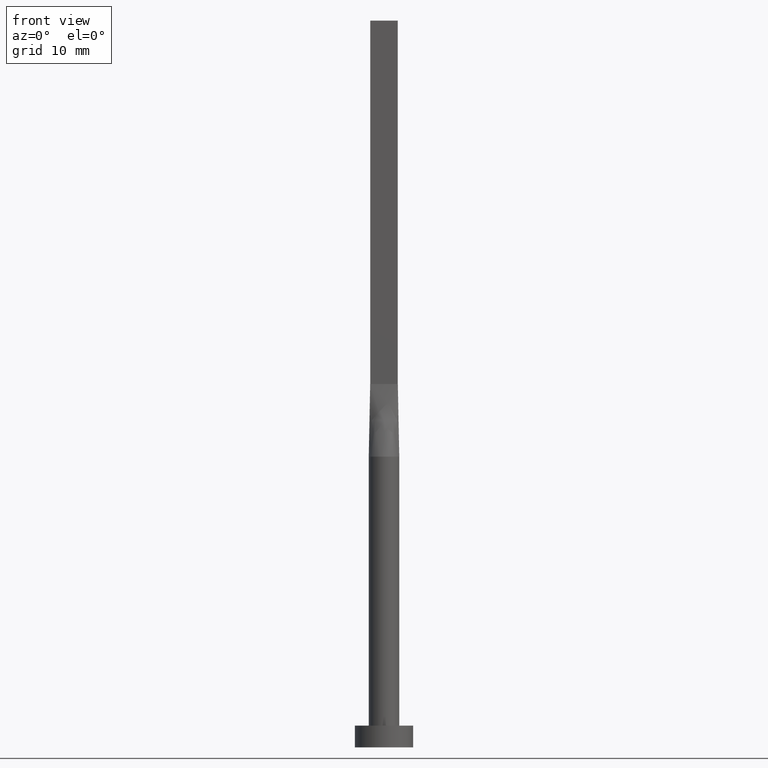
[diagram: clean part render]
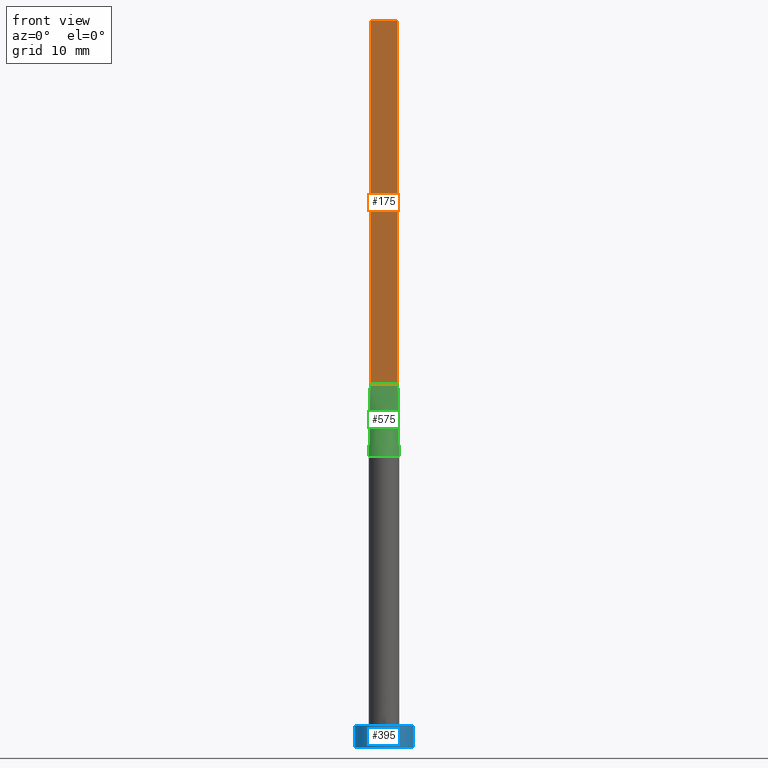
[diagram: same view with three faces highlighted in distinct colors, each labeled with its STEP entity id]
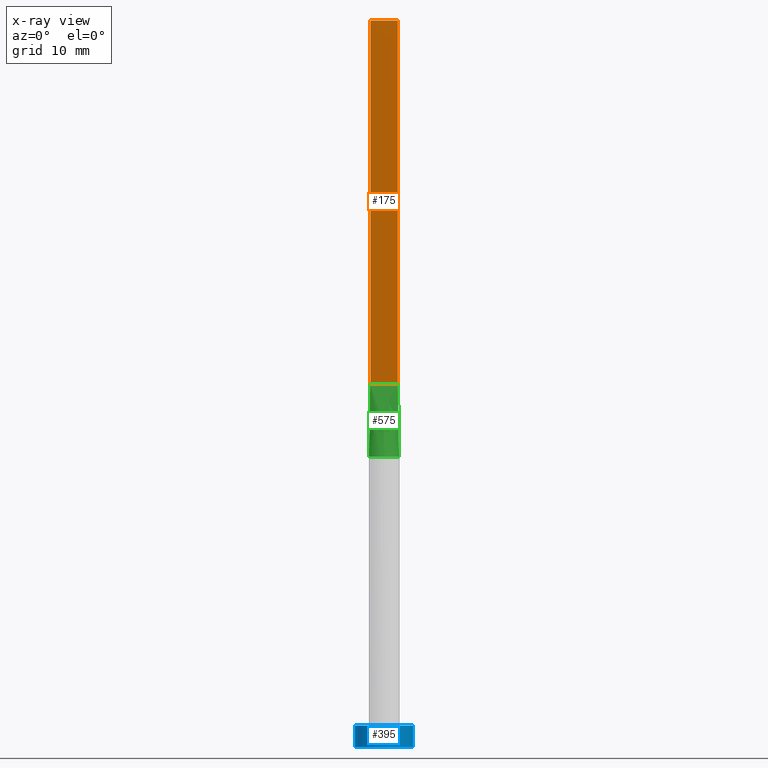
[diagram: x-ray of the same camera — body ghosted, the three highlighted faces saturated]
A machine part, front view with three faces highlighted in distinct colors.
The next image is the same camera in x-ray (body ghosted, the three faces saturated) — at least one of them is partly hidden behind the body in this view.
Their STEP definitions:

[orange] entity #175 — the highlighted planar face has unit normal (0, 1, -0).
#25 = DIRECTION ( 'NONE',  ( 1.000000000000000000, -7.132909029509899409E-17, 0.000000000000000000 ) ) ;
#68 = DIRECTION ( 'NONE',  ( -0.000000000000000000, -0.000000000000000000, -1.000000000000000000 ) ) ;
#81 = VERTEX_POINT ( 'NONE', #241 ) ;
#90 = VERTEX_POINT ( 'NONE', #418 ) ;
#154 = CARTESIAN_POINT ( 'NONE',  ( 1.899999999999999023, -0.2999999999999997669, 100.0000000000000000 ) ) ;
#159 = ORIENTED_EDGE ( 'NONE', *, *, #280, .T. ) ;
#161 = CARTESIAN_POINT ( 'NONE',  ( -1.899999999999999911, -0.2999999999999994893, 50.00000000000000000 ) ) ;
#163 = DIRECTION ( 'NONE',  ( 7.132909029509899409E-17, 1.000000000000000000, -0.000000000000000000 ) ) ;
#175 = ADVANCED_FACE ( 'NONE', ( #386 ), #560, .F. ) ;
#183 = ORIENTED_EDGE ( 'NONE', *, *, #574, .F. ) ;
#200 = EDGE_LOOP ( 'NONE', ( #159, #183, #387, #448 ) ) ;
#203 = LINE ( 'NONE', #470, #468 ) ;
#236 = AXIS2_PLACEMENT_3D ( 'NONE', #524, #163, #349 ) ;
#241 = CARTESIAN_POINT ( 'NONE',  ( -1.899999999999999911, -0.2999999999999994893, 100.0000000000000000 ) ) ;
#250 = VERTEX_POINT ( 'NONE', #161 ) ;
#260 = VERTEX_POINT ( 'NONE', #275 ) ;
#275 = CARTESIAN_POINT ( 'NONE',  ( 1.899999999999999023, -0.2999999999999997669, 50.00000000000000000 ) ) ;
#280 = EDGE_CURVE ( 'NONE', #250, #260, #572, .T. ) ;
#293 = CARTESIAN_POINT ( 'NONE',  ( -1.899999999999999911, -0.2999999999999994893, 100.0000000000000000 ) ) ;
#348 = VECTOR ( 'NONE', #68, 1000.000000000000000 ) ;
#349 = DIRECTION ( 'NONE',  ( -1.000000000000000000, 7.132909029509899409E-17, 0.000000000000000000 ) ) ;
#377 = DIRECTION ( 'NONE',  ( -0.000000000000000000, -0.000000000000000000, -1.000000000000000000 ) ) ;
#386 = FACE_OUTER_BOUND ( 'NONE', #200, .T. ) ;
#387 = ORIENTED_EDGE ( 'NONE', *, *, #535, .F. ) ;
#418 = CARTESIAN_POINT ( 'NONE',  ( 1.899999999999999023, -0.2999999999999997669, 100.0000000000000000 ) ) ;
#448 = ORIENTED_EDGE ( 'NONE', *, *, #559, .T. ) ;
#452 = CARTESIAN_POINT ( 'NONE',  ( -1.899999999999999911, -0.2999999999999994893, 50.00000000000000000 ) ) ;
#468 = VECTOR ( 'NONE', #25, 1000.000000000000000 ) ;
#470 = CARTESIAN_POINT ( 'NONE',  ( -1.899999999999999911, -0.2999999999999994893, 100.0000000000000000 ) ) ;
#489 = VECTOR ( 'NONE', #377, 1000.000000000000000 ) ;
#492 = DIRECTION ( 'NONE',  ( 1.000000000000000000, -7.132909029509898176E-17, 0.000000000000000000 ) ) ;
#524 = CARTESIAN_POINT ( 'NONE',  ( -1.899999999999999911, -0.2999999999999994893, 100.0000000000000000 ) ) ;
#535 = EDGE_CURVE ( 'NONE', #81, #90, #203, .T. ) ;
#553 = LINE ( 'NONE', #154, #348 ) ;
#558 = VECTOR ( 'NONE', #492, 1000.000000000000000 ) ;
#559 = EDGE_CURVE ( 'NONE', #81, #250, #563, .T. ) ;
#560 = PLANE ( 'NONE',  #236 ) ;
#563 = LINE ( 'NONE', #293, #489 ) ;
#572 = LINE ( 'NONE', #452, #558 ) ;
#574 = EDGE_CURVE ( 'NONE', #90, #260, #553, .T. ) ;

[blue] entity #395 — the highlighted cylindrical surface (edge-blend (fillet) strip) has radius 4 mm, axis along (-0, -0, -1).
#17 = CARTESIAN_POINT ( 'NONE',  ( -4.000000000000000000, 0.000000000000000000, 3.000000000000000000 ) ) ;
#33 = ORIENTED_EDGE ( 'NONE', *, *, #107, .T. ) ;
#62 = DIRECTION ( 'NONE',  ( 0.000000000000000000, 0.000000000000000000, 1.000000000000000000 ) ) ;
#63 = CARTESIAN_POINT ( 'NONE',  ( 4.000000000000000000, 4.898587196589412829E-16, 3.000000000000000000 ) ) ;
#88 = DIRECTION ( 'NONE',  ( 0.000000000000000000, 0.000000000000000000, 1.000000000000000000 ) ) ;
#107 = EDGE_CURVE ( 'NONE', #179, #530, #127, .T. ) ;
#127 = CIRCLE ( 'NONE', #546, 4.000000000000000000 ) ;
#132 = AXIS2_PLACEMENT_3D ( 'NONE', #400, #88, #505 ) ;
#136 = ORIENTED_EDGE ( 'NONE', *, *, #316, .F. ) ;
#138 = CYLINDRICAL_SURFACE ( 'NONE', #365, 4.000000000000000000 ) ;
#162 = CARTESIAN_POINT ( 'NONE',  ( -4.000000000000000000, 0.000000000000000000, 3.000000000000000000 ) ) ;
#179 = VERTEX_POINT ( 'NONE', #342 ) ;
#181 = EDGE_LOOP ( 'NONE', ( #343, #136, #364, #33 ) ) ;
#182 = CARTESIAN_POINT ( 'NONE',  ( 0.000000000000000000, 0.000000000000000000, 3.000000000000000000 ) ) ;
#199 = DIRECTION ( 'NONE',  ( -0.000000000000000000, -0.000000000000000000, -1.000000000000000000 ) ) ;
#278 = DIRECTION ( 'NONE',  ( -1.000000000000000000, 0.000000000000000000, 0.000000000000000000 ) ) ;
#286 = CARTESIAN_POINT ( 'NONE',  ( 4.000000000000000000, 4.898587196589412829E-16, 3.000000000000000000 ) ) ;
#301 = CARTESIAN_POINT ( 'NONE',  ( 4.000000000000000000, 4.898587196589412829E-16, 0.000000000000000000 ) ) ;
#316 = EDGE_CURVE ( 'NONE', #493, #455, #385, .T. ) ;
#329 = LINE ( 'NONE', #63, #532 ) ;
#336 = EDGE_CURVE ( 'NONE', #455, #530, #329, .T. ) ;
#342 = CARTESIAN_POINT ( 'NONE',  ( -4.000000000000000000, 0.000000000000000000, 0.000000000000000000 ) ) ;
#343 = ORIENTED_EDGE ( 'NONE', *, *, #336, .F. ) ;
#364 = ORIENTED_EDGE ( 'NONE', *, *, #509, .T. ) ;
#365 = AXIS2_PLACEMENT_3D ( 'NONE', #182, #498, #278 ) ;
#374 = VECTOR ( 'NONE', #550, 1000.000000000000000 ) ;
#385 = CIRCLE ( 'NONE', #132, 4.000000000000000000 ) ;
#395 = ADVANCED_FACE ( 'NONE', ( #502 ), #138, .T. ) ;
#400 = CARTESIAN_POINT ( 'NONE',  ( 0.000000000000000000, 0.000000000000000000, 3.000000000000000000 ) ) ;
#423 = DIRECTION ( 'NONE',  ( 1.000000000000000000, 0.000000000000000000, 0.000000000000000000 ) ) ;
#430 = LINE ( 'NONE', #162, #374 ) ;
#455 = VERTEX_POINT ( 'NONE', #286 ) ;
#466 = CARTESIAN_POINT ( 'NONE',  ( 0.000000000000000000, 0.000000000000000000, 0.000000000000000000 ) ) ;
#493 = VERTEX_POINT ( 'NONE', #17 ) ;
#498 = DIRECTION ( 'NONE',  ( -0.000000000000000000, -0.000000000000000000, -1.000000000000000000 ) ) ;
#502 = FACE_OUTER_BOUND ( 'NONE', #181, .T. ) ;
#505 = DIRECTION ( 'NONE',  ( 1.000000000000000000, 0.000000000000000000, 0.000000000000000000 ) ) ;
#509 = EDGE_CURVE ( 'NONE', #493, #179, #430, .T. ) ;
#530 = VERTEX_POINT ( 'NONE', #301 ) ;
#532 = VECTOR ( 'NONE', #199, 1000.000000000000000 ) ;
#546 = AXIS2_PLACEMENT_3D ( 'NONE', #466, #62, #423 ) ;
#550 = DIRECTION ( 'NONE',  ( -0.000000000000000000, -0.000000000000000000, -1.000000000000000000 ) ) ;

[green] entity #575 — the highlighted face is a freeform B-spline surface patch.
#18 = CARTESIAN_POINT ( 'NONE',  ( 1.266666666666666385, -0.2999999999999997113, 50.00000000000000000 ) ) ;
#19 = DIRECTION ( 'NONE',  ( 1.000000000000000000, 0.000000000000000000, 0.000000000000000000 ) ) ;
#49 = ORIENTED_EDGE ( 'NONE', *, *, #280, .F. ) ;
#59 = B_SPLINE_SURFACE_WITH_KNOTS ( 'NONE', 3, 1, ( 
 ( #202, #471 ),
 ( #78, #382 ),
 ( #125, #253 ),
 ( #570, #429 ),
 ( #164, #263 ),
 ( #295, #391 ),
 ( #114, #344 ),
 ( #555, #156 ),
 ( #435, #261 ),
 ( #67, #213 ),
 ( #394, #249 ),
 ( #347, #70 ),
 ( #426, #308 ),
 ( #476, #519 ),
 ( #483, #18 ),
 ( #128, #440 ),
 ( #522, #339 ),
 ( #216, #473 ) ),
 .UNSPECIFIED., .F., .F., .F.,
 ( 4, 2, 2, 2, 2, 2, 2, 2, 4 ),
 ( 2, 2 ),
 ( 0.000000000000000000, 0.1249999999999999445, 0.2499999999999999445, 0.3749999999999999445, 0.5000000000000000000, 0.6249999999999998890, 0.7499999999999998890, 0.8749999999999997780, 1.000000000000000000 ),
 ( 0.000000000000000000, 1.000000000000000000 ),
 .UNSPECIFIED. ) ;
#61 = CARTESIAN_POINT ( 'NONE',  ( 2.074492141291045755, -0.3275508996892426139, 40.00000000000000000 ) ) ;
#67 = CARTESIAN_POINT ( 'NONE',  ( 0.2990728642939452508, -2.100000000000000533, 40.00000000000000000 ) ) ;
#70 = CARTESIAN_POINT ( 'NONE',  ( 0.6333333333333340809, -0.2999999999999996003, 50.00000000000000000 ) ) ;
#78 = CARTESIAN_POINT ( 'NONE',  ( -2.047342767731585411, -0.4982646475365654637, 39.99999999999999289 ) ) ;
#114 = CARTESIAN_POINT ( 'NONE',  ( -1.119115561862284558, -1.799829988698610439, 40.00000000000000711 ) ) ;
#121 = LINE ( 'NONE', #165, #409 ) ;
#125 = CARTESIAN_POINT ( 'NONE',  ( -1.996565546919327971, -0.6845950695482642123, 40.00000000000000711 ) ) ;
#128 = CARTESIAN_POINT ( 'NONE',  ( 1.996565546919328415, -0.6845950695482654336, 40.00000000000001421 ) ) ;
#156 = CARTESIAN_POINT ( 'NONE',  ( -0.3166666666666652086, -0.2999999999999996003, 50.00000000000000000 ) ) ;
#161 = CARTESIAN_POINT ( 'NONE',  ( -1.899999999999999911, -0.2999999999999994893, 50.00000000000000000 ) ) ;
#164 = CARTESIAN_POINT ( 'NONE',  ( -1.692271541701912296, -1.268928319070361965, 40.00000000000000000 ) ) ;
#165 = CARTESIAN_POINT ( 'NONE',  ( 1.987151113595522212, -0.3137607021466614632, 45.00000000000000000 ) ) ;
#174 = DIRECTION ( 'NONE',  ( -0.01742750958084847077, 0.002751712039081371727, 0.9998443428807622935 ) ) ;
#202 = CARTESIAN_POINT ( 'NONE',  ( -2.074302227191044956, -0.3275214042933223824, 40.00000000000000000 ) ) ;
#213 = CARTESIAN_POINT ( 'NONE',  ( 0.1583333333333347415, -0.2999999999999996003, 50.00000000000000000 ) ) ;
#215 = CARTESIAN_POINT ( 'NONE',  ( 0.000000000000000000, 0.000000000000000000, 40.00000000000000000 ) ) ;
#216 = CARTESIAN_POINT ( 'NONE',  ( 2.074302227191044956, -0.3275214042933231595, 40.00000000000000000 ) ) ;
#228 = EDGE_CURVE ( 'NONE', #315, #566, #276, .T. ) ;
#249 = CARTESIAN_POINT ( 'NONE',  ( 0.3166666666666678176, -0.2999999999999996003, 50.00000000000000000 ) ) ;
#250 = VERTEX_POINT ( 'NONE', #161 ) ;
#253 = CARTESIAN_POINT ( 'NONE',  ( -1.583333333333333037, -0.2999999999999994893, 50.00000000000000000 ) ) ;
#255 = EDGE_CURVE ( 'NONE', #566, #260, #121, .T. ) ;
#260 = VERTEX_POINT ( 'NONE', #275 ) ;
#261 = CARTESIAN_POINT ( 'NONE',  ( -0.1583333333333317716, -0.2999999999999996003, 50.00000000000000711 ) ) ;
#263 = CARTESIAN_POINT ( 'NONE',  ( -1.108333333333332504, -0.2999999999999994893, 50.00000000000000000 ) ) ;
#270 = CARTESIAN_POINT ( 'NONE',  ( -2.074486960997361962, -0.3275502116714910095, 40.00000000000000000 ) ) ;
#271 = ORIENTED_EDGE ( 'NONE', *, *, #255, .T. ) ;
#275 = CARTESIAN_POINT ( 'NONE',  ( 1.899999999999999023, -0.2999999999999997669, 50.00000000000000000 ) ) ;
#276 = CIRCLE ( 'NONE', #337, 2.100000000000000089 ) ;
#280 = EDGE_CURVE ( 'NONE', #250, #260, #572, .T. ) ;
#295 = CARTESIAN_POINT ( 'NONE',  ( -1.342614810400548864, -1.634425746458369355, 40.00000000000000711 ) ) ;
#308 = CARTESIAN_POINT ( 'NONE',  ( 0.7916666666666672958, -0.2999999999999996003, 50.00000000000000000 ) ) ;
#315 = VERTEX_POINT ( 'NONE', #270 ) ;
#324 = VECTOR ( 'NONE', #500, 1000.000000000000114 ) ;
#337 = AXIS2_PLACEMENT_3D ( 'NONE', #215, #392, #19 ) ;
#339 = CARTESIAN_POINT ( 'NONE',  ( 1.741666666666665586, -0.2999999999999997113, 50.00000000000000000 ) ) ;
#344 = CARTESIAN_POINT ( 'NONE',  ( -0.6333333333333320825, -0.2999999999999996003, 50.00000000000000000 ) ) ;
#347 = CARTESIAN_POINT ( 'NONE',  ( 1.119115561862284114, -1.799829988698610883, 39.99999999999998579 ) ) ;
#363 = CARTESIAN_POINT ( 'NONE',  ( -1.987151113595522656, -0.3137607021466609636, 45.00000000000000000 ) ) ;
#368 = LINE ( 'NONE', #363, #324 ) ;
#382 = CARTESIAN_POINT ( 'NONE',  ( -1.741666666666666474, -0.2999999999999994893, 50.00000000000000000 ) ) ;
#383 = ORIENTED_EDGE ( 'NONE', *, *, #399, .T. ) ;
#391 = CARTESIAN_POINT ( 'NONE',  ( -0.7916666666666655194, -0.2999999999999995448, 50.00000000000000000 ) ) ;
#392 = DIRECTION ( 'NONE',  ( 0.000000000000000000, 0.000000000000000000, 1.000000000000000000 ) ) ;
#394 = CARTESIAN_POINT ( 'NONE',  ( 0.5970064165420505553, -2.033566071616262683, 40.00000000000000000 ) ) ;
#399 = EDGE_CURVE ( 'NONE', #250, #315, #368, .T. ) ;
#409 = VECTOR ( 'NONE', #174, 1000.000000000000114 ) ;
#426 = CARTESIAN_POINT ( 'NONE',  ( 1.342614810400548864, -1.634425746458370021, 40.00000000000000711 ) ) ;
#429 = CARTESIAN_POINT ( 'NONE',  ( -1.266666666666665941, -0.2999999999999994893, 50.00000000000000000 ) ) ;
#435 = CARTESIAN_POINT ( 'NONE',  ( -0.2990728642939464721, -2.100000000000000977, 40.00000000000000711 ) ) ;
#440 = CARTESIAN_POINT ( 'NONE',  ( 1.583333333333332371, -0.2999999999999997113, 50.00000000000000000 ) ) ;
#450 = ORIENTED_EDGE ( 'NONE', *, *, #228, .T. ) ;
#452 = CARTESIAN_POINT ( 'NONE',  ( -1.899999999999999911, -0.2999999999999994893, 50.00000000000000000 ) ) ;
#471 = CARTESIAN_POINT ( 'NONE',  ( -1.899999999999999911, -0.2999999999999994893, 50.00000000000000000 ) ) ;
#473 = CARTESIAN_POINT ( 'NONE',  ( 1.899999999999999023, -0.2999999999999997669, 50.00000000000000000 ) ) ;
#476 = CARTESIAN_POINT ( 'NONE',  ( 1.692271541701912962, -1.268928319070363520, 40.00000000000002842 ) ) ;
#483 = CARTESIAN_POINT ( 'NONE',  ( 1.819451111325472104, -1.069832718648842107, 40.00000000000000711 ) ) ;
#492 = DIRECTION ( 'NONE',  ( 1.000000000000000000, -7.132909029509898176E-17, 0.000000000000000000 ) ) ;
#500 = DIRECTION ( 'NONE',  ( -0.01742750958084838056, -0.002751712039081322721, -0.9998443428807622935 ) ) ;
#519 = CARTESIAN_POINT ( 'NONE',  ( 1.108333333333333393, -0.2999999999999996558, 50.00000000000000000 ) ) ;
#522 = CARTESIAN_POINT ( 'NONE',  ( 2.047342767731585855, -0.4982646475365661298, 40.00000000000000711 ) ) ;
#555 = CARTESIAN_POINT ( 'NONE',  ( -0.5970064165420509994, -2.033566071616262239, 40.00000000000000000 ) ) ;
#558 = VECTOR ( 'NONE', #492, 1000.000000000000000 ) ;
#566 = VERTEX_POINT ( 'NONE', #61 ) ;
#568 = FACE_OUTER_BOUND ( 'NONE', #577, .T. ) ;
#570 = CARTESIAN_POINT ( 'NONE',  ( -1.819451111325472548, -1.069832718648841663, 40.00000000000001421 ) ) ;
#572 = LINE ( 'NONE', #452, #558 ) ;
#575 = ADVANCED_FACE ( 'NONE', ( #568 ), #59, .T. ) ;
#577 = EDGE_LOOP ( 'NONE', ( #450, #271, #49, #383 ) ) ;